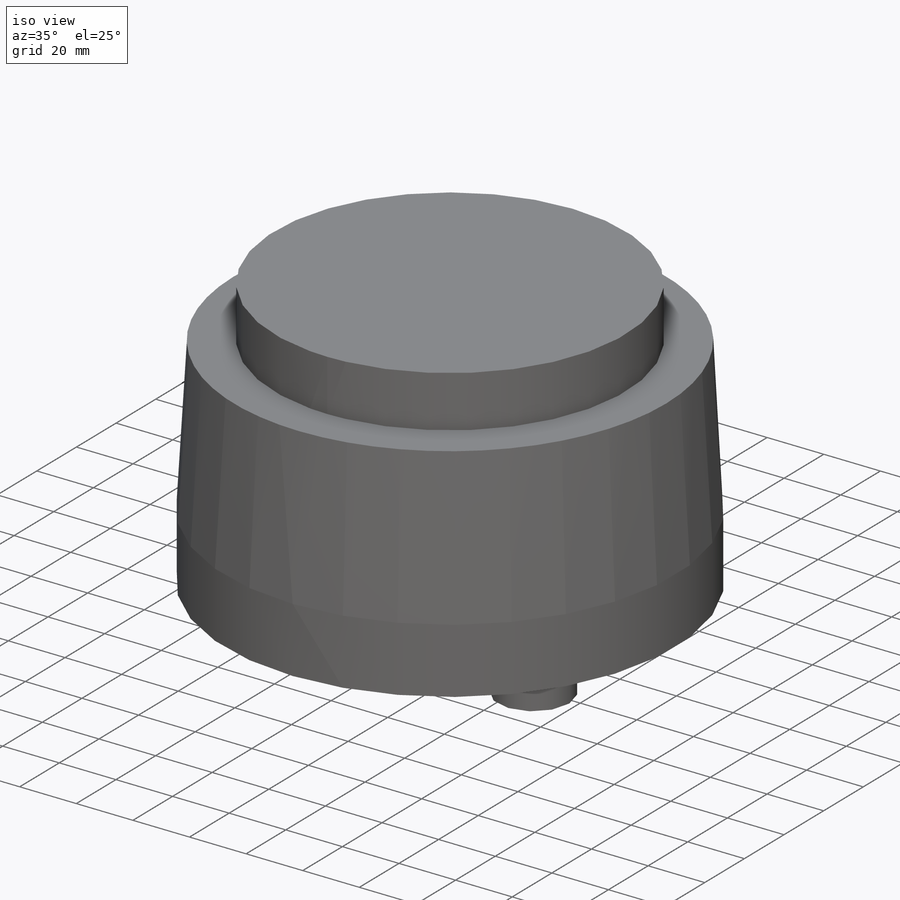
[diagram: iso view]
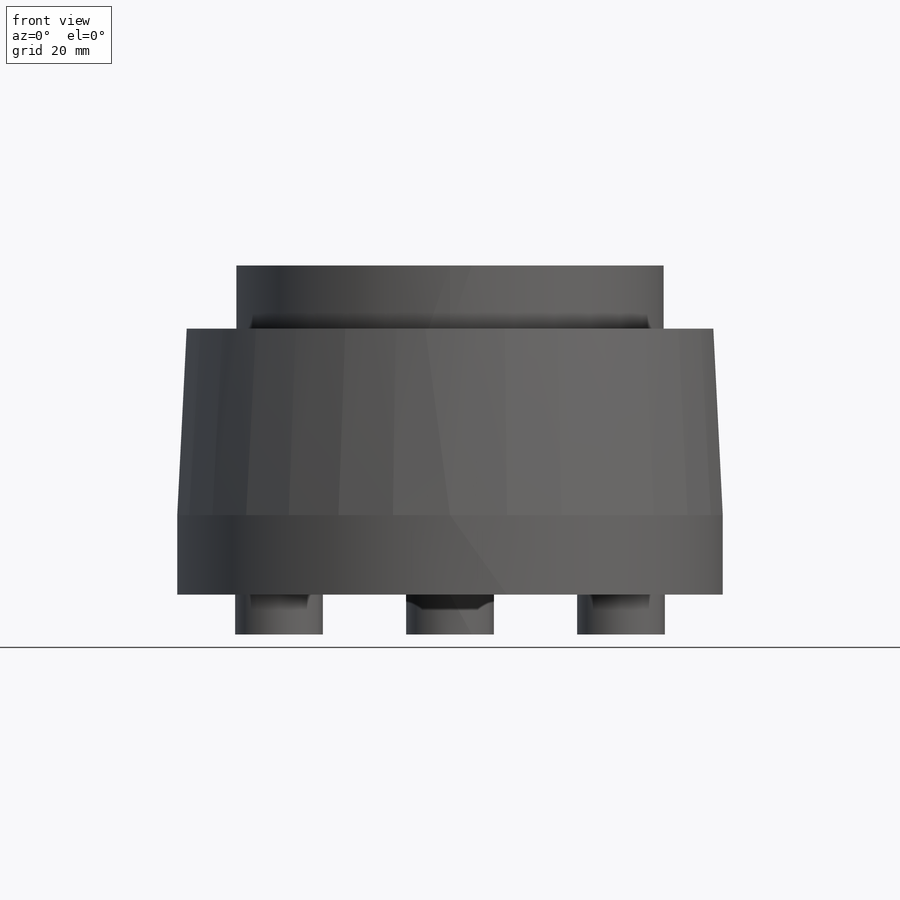
[diagram: front view]
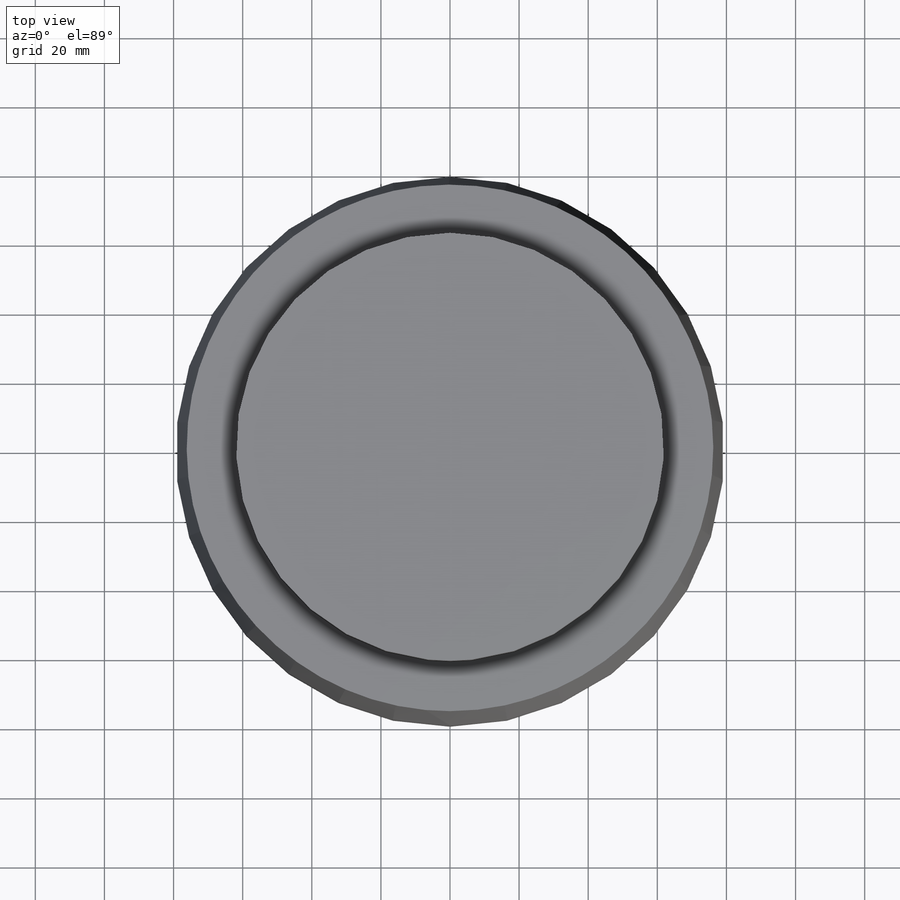
[diagram: top view]
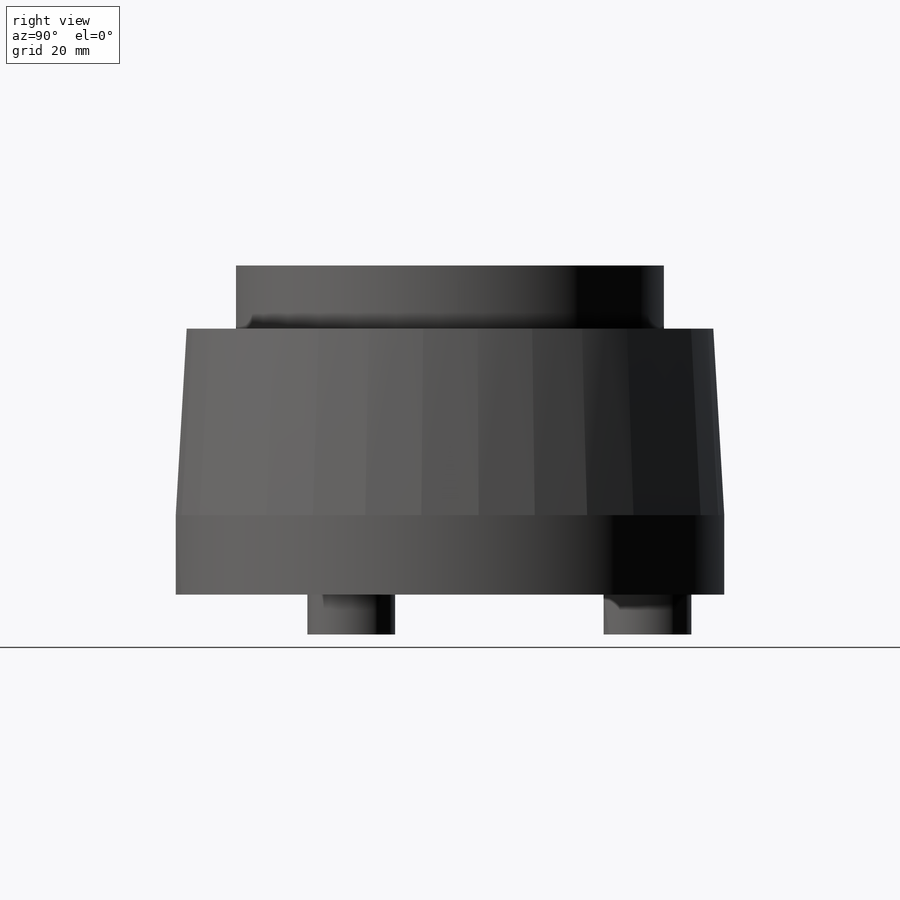
[diagram: right view]
SOLIDWORKS PART (.sldprt)
format: sldprt  version: not decoded by parser v0  size: 232,960 bytes
history: native  units: mm
features: sketch x5, extrude x3, material x1, plane x1, pattern_circular x1 (+14 scaffold rows collapsed)
feature tree (25):
  scaffold x14  (default folders/planes/origin — collapsed)
  material  "Material <not specified>"
  sketch  "Sketch1"  dims[D1=123.825mm]
  extrude  "Extrude1"  Depth=18.2626mm
  plane  "Plane1"  Offset=53.975mm
  sketch  "Sketch2"  dims[D1=152.4mm]
  sketch  "Sketch3"  dims[D1=158.75mm]
  sketch  "Sketch4"  dims[D1=158.75mm]
  extrude  "Extrude2"  Depth=23.0124mm
  sketch  "Sketch5"  dims[D2=25.4mm D1=57.15mm]
  extrude  "Extrude3"  Depth=11.5316mm
  pattern_circular  "CirPattern1"  Count=3 Angle=360deg
decode coverage: 9 of 9 modeling features carry decoded parameters
note: suppression state not decoded; provenance and decode notes live in map.json
